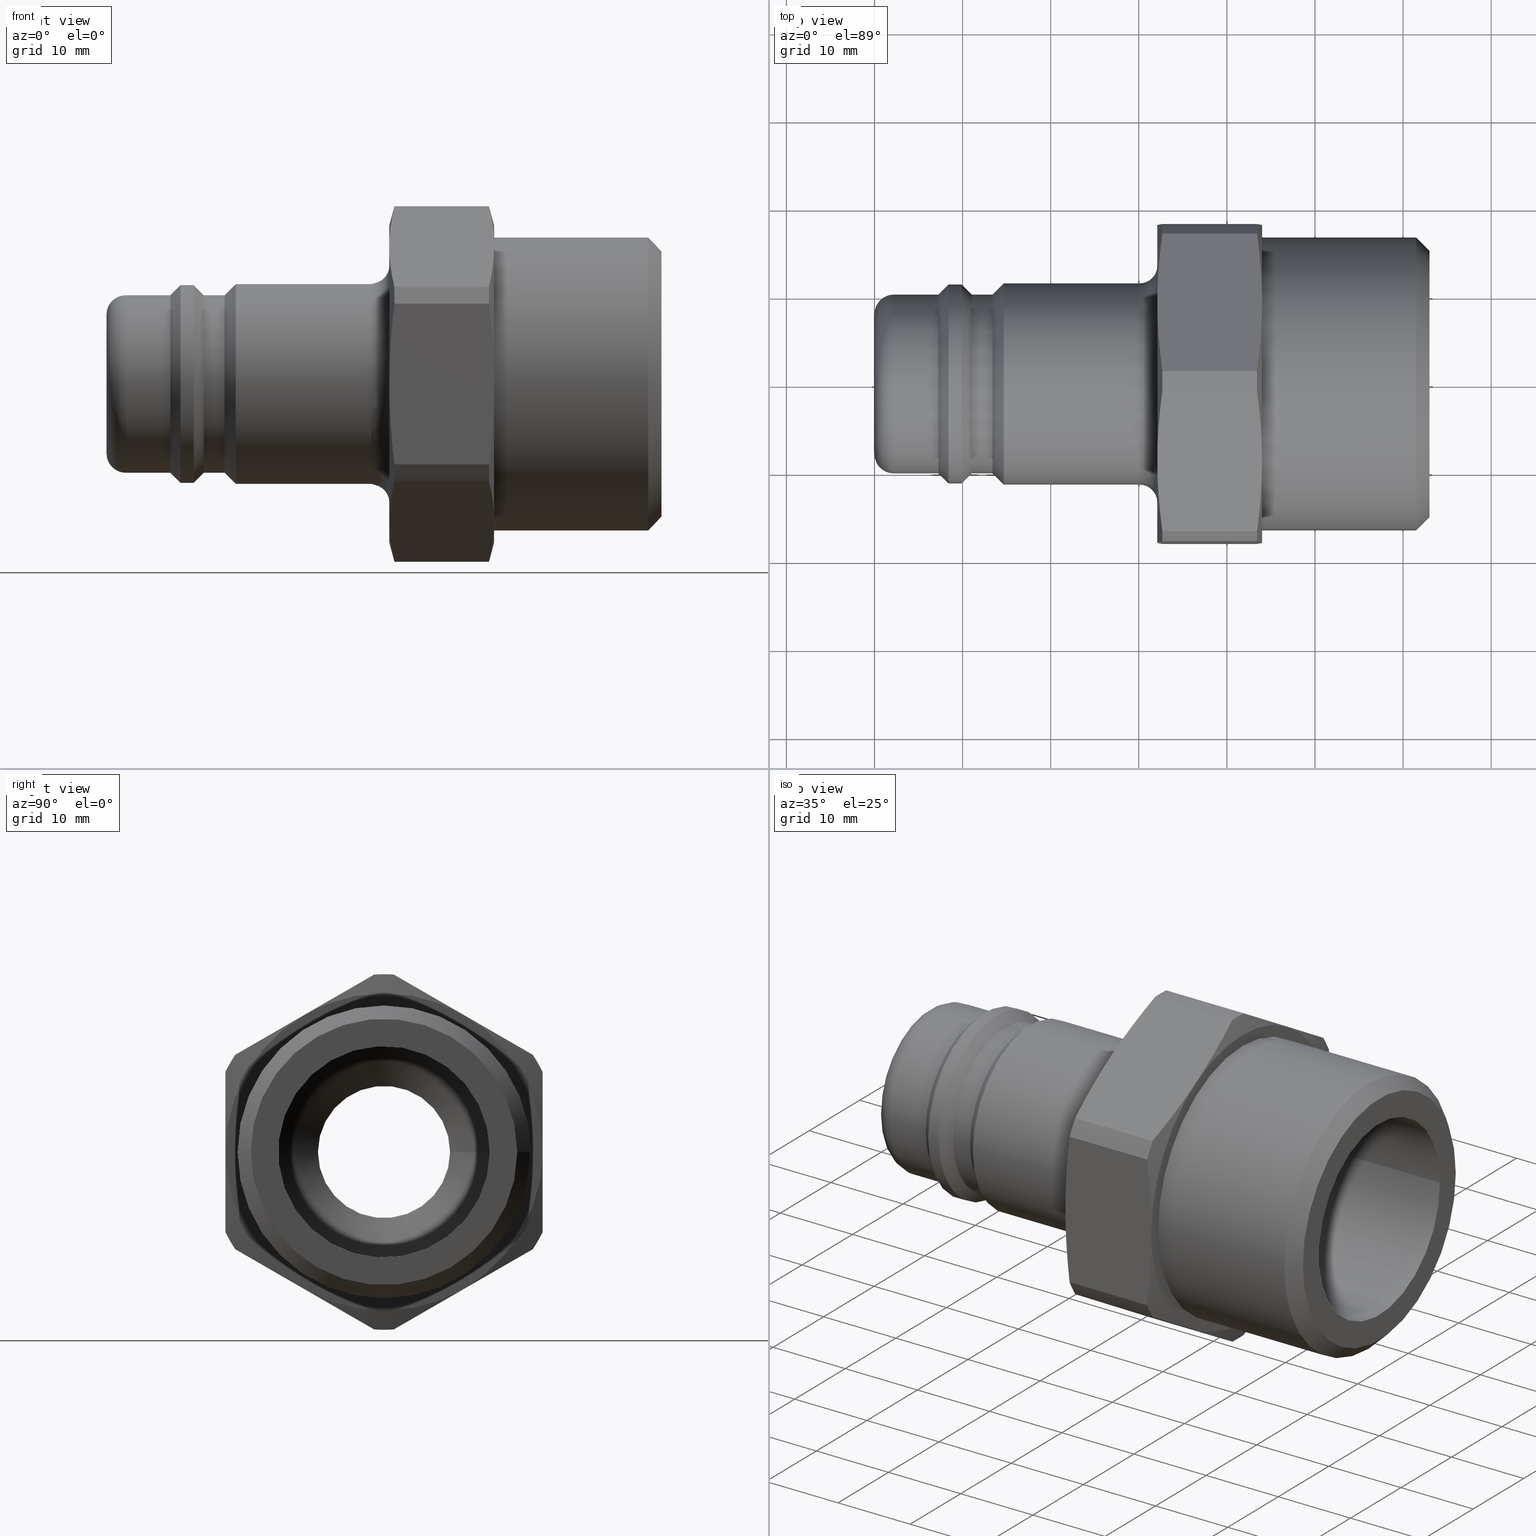
[diagram: canonical four-view strip — front | top / right | iso, engineering-drawing reading convention]
A machine part, canonical four-view strip (front | top / right | iso — engineering-drawing reading convention). The complete STEP part file that produces these views, byte-faithful:
ISO-10303-21;
HEADER;
/****************************************************************
 * Generated by software with PDElib inside                    *
 * PDElib Version v51a, created Wed 11/30/2011                  *
 * ITI Transcendata (http://www.transcendata.com/)              *
 ****************************************************************/
FILE_DESCRIPTION((''),'2;1');
FILE_NAME('J:\\3D Zeichnungen_step\\Serie 38\\38sfaw33mxn.stp','2014-08-04T08:39:11',('IA176480'),(''),'Autodesk Inventor 2013','Autodesk Inventor 2013','');
FILE_SCHEMA(('AUTOMOTIVE_DESIGN { 1 0 10303 214 1 1 1 1 }'));
ENDSEC;
DATA;
#5=APPLICATION_CONTEXT('automotive design');
#6=APPLICATION_PROTOCOL_DEFINITION('International Standard','automotive_design',2001,#5);
#7=PRODUCT_CONTEXT('',#5,'mechanical');
#8=PRODUCT('D111275','D111275',$,(#7));
#9=PRODUCT_RELATED_PRODUCT_CATEGORY('part',$,(#8));
#10=PRODUCT_DEFINITION_FORMATION('',$,#8);
#11=PRODUCT_DEFINITION_CONTEXT('part definition',#5,'design');
#12=PRODUCT_DEFINITION('',$,#10,#11);
#18=(NAMED_UNIT(*)PLANE_ANGLE_UNIT()SI_UNIT($,.RADIAN.));
#19=DIMENSIONAL_EXPONENTS(0.0,0.0,0.0,0.0,0.0,0.0,0.0);
#20=PLANE_ANGLE_MEASURE_WITH_UNIT(PLANE_ANGLE_MEASURE(0.0174532925),#18);
#24=(CONVERSION_BASED_UNIT('DEGREE',#20)NAMED_UNIT(#19)PLANE_ANGLE_UNIT());
#28=(NAMED_UNIT(*)SI_UNIT($,.STERADIAN.)SOLID_ANGLE_UNIT());
#32=(LENGTH_UNIT()NAMED_UNIT(*)SI_UNIT(.MILLI.,.METRE.));
#34=UNCERTAINTY_MEASURE_WITH_UNIT(LENGTH_MEASURE(0.01),#32,'DISTANCE_ACCURACY_VALUE','');
#36=(GEOMETRIC_REPRESENTATION_CONTEXT(3)GLOBAL_UNCERTAINTY_ASSIGNED_CONTEXT((#34))GLOBAL_UNIT_ASSIGNED_CONTEXT((#24,#28,#32))REPRESENTATION_CONTEXT('None','None'));
#37=AXIS2_PLACEMENT_3D('',#38,#39,#40);
#38=CARTESIAN_POINT('',(0.0,0.0,0.0));
#39=DIRECTION('',(0.0,0.0,1.0));
#40=DIRECTION('',(1.0,0.0,0.0));
#41=SHAPE_REPRESENTATION('',(#37),#36);
#42=PRODUCT_DEFINITION_SHAPE('','',#12);
#43=SHAPE_DEFINITION_REPRESENTATION(#42,#41);
#49=(NAMED_UNIT(*)PLANE_ANGLE_UNIT()SI_UNIT($,.RADIAN.));
#50=DIMENSIONAL_EXPONENTS(0.0,0.0,0.0,0.0,0.0,0.0,0.0);
#51=PLANE_ANGLE_MEASURE_WITH_UNIT(PLANE_ANGLE_MEASURE(0.0174532925),#49);
#55=(CONVERSION_BASED_UNIT('DEGREE',#51)NAMED_UNIT(#50)PLANE_ANGLE_UNIT());
#59=(NAMED_UNIT(*)SI_UNIT($,.STERADIAN.)SOLID_ANGLE_UNIT());
#63=(LENGTH_UNIT()NAMED_UNIT(*)SI_UNIT(.MILLI.,.METRE.));
#65=UNCERTAINTY_MEASURE_WITH_UNIT(LENGTH_MEASURE(0.000001),#63,'DISTANCE_ACCURACY_VALUE','');
#67=(GEOMETRIC_REPRESENTATION_CONTEXT(3)GLOBAL_UNCERTAINTY_ASSIGNED_CONTEXT((#65))GLOBAL_UNIT_ASSIGNED_CONTEXT((#55,#59,#63))REPRESENTATION_CONTEXT('','3D'));
#68=CARTESIAN_POINT('',(31.403086659045094,8.999999999999988,-15.588457268119903));
#69=DIRECTION('',(0.0,-0.499999999999999,0.866025403784439));
#70=DIRECTION('',(1.0,0.0,0.0));
#71=AXIS2_PLACEMENT_3D('',#68,#69,#70);
#72=PLANE('',#71);
#73=CARTESIAN_POINT('',(32.682789493537697,16.891322370173452,-11.032400173438145));
#74=VERTEX_POINT('',#73);
#75=CARTESIAN_POINT('',(32.100000000000009,8.999999999999986,-15.588457268119901));
#76=VERTEX_POINT('',#75);
#77=CARTESIAN_POINT('',(32.682789493537697,16.89132237017343,-11.032400173438162));
#78=CARTESIAN_POINT('',(32.100000000000009,12.72085927080866,-13.440218166501808));
#79=CARTESIAN_POINT('',(32.100000000000001,8.999999999999986,-15.588457268119903));
#87=(BOUNDED_CURVE()B_SPLINE_CURVE(2,(#77,#78,#79),.UNSPECIFIED.,.F.,.U.)B_SPLINE_CURVE_WITH_KNOTS((3,3),(0.0,0.91349749588939),.UNSPECIFIED.)CURVE()GEOMETRIC_REPRESENTATION_ITEM()RATIONAL_B_SPLINE_CURVE((1.0,1.029765345438803,1.0))REPRESENTATION_ITEM(''));
#88=EDGE_CURVE('',#74,#76,#87,.T.);
#89=ORIENTED_EDGE('',*,*,#88,.F.);
#90=CARTESIAN_POINT('',(43.417210506462297,16.891322370173452,-11.032400173438145));
#91=VERTEX_POINT('',#90);
#92=CARTESIAN_POINT('',(43.417210506462297,16.891322370173452,-11.032400173438145));
#93=DIRECTION('',(-1.0,0.0,0.0));
#94=VECTOR('',#93,10.734421012924599);
#95=LINE('',#92,#94);
#96=EDGE_CURVE('',#91,#74,#95,.T.);
#97=ORIENTED_EDGE('',*,*,#96,.F.);
#98=CARTESIAN_POINT('',(43.999999999999993,8.999999999999986,-15.588457268119901));
#99=VERTEX_POINT('',#98);
#100=CARTESIAN_POINT('',(44.0,8.999999999999988,-15.588457268119903));
#101=CARTESIAN_POINT('',(44.0,12.720859270808642,-13.440218166501817));
#102=CARTESIAN_POINT('',(43.417210506462297,16.891322370173473,-11.032400173438138));
#110=(BOUNDED_CURVE()B_SPLINE_CURVE(2,(#100,#101,#102),.UNSPECIFIED.,.F.,.U.)B_SPLINE_CURVE_WITH_KNOTS((3,3),(0.913497495889395,1.826994991778789),.UNSPECIFIED.)CURVE()GEOMETRIC_REPRESENTATION_ITEM()RATIONAL_B_SPLINE_CURVE((1.0,1.029765345438765,1.0))REPRESENTATION_ITEM(''));
#111=EDGE_CURVE('',#99,#91,#110,.T.);
#112=ORIENTED_EDGE('',*,*,#111,.F.);
#113=CARTESIAN_POINT('',(43.417210506462297,1.10867762982652,-20.144514362801658));
#114=VERTEX_POINT('',#113);
#115=CARTESIAN_POINT('',(43.417210506462297,1.108677629826502,-20.144514362801672));
#116=CARTESIAN_POINT('',(44.0,5.279140729191333,-17.736696369737992));
#117=CARTESIAN_POINT('',(44.0,8.999999999999988,-15.588457268119903));
#125=(BOUNDED_CURVE()B_SPLINE_CURVE(2,(#115,#116,#117),.UNSPECIFIED.,.F.,.U.)B_SPLINE_CURVE_WITH_KNOTS((3,3),(0.0,0.913497495889395),.UNSPECIFIED.)CURVE()GEOMETRIC_REPRESENTATION_ITEM()RATIONAL_B_SPLINE_CURVE((1.0,1.029765345438756,1.0))REPRESENTATION_ITEM(''));
#126=EDGE_CURVE('',#114,#99,#125,.T.);
#127=ORIENTED_EDGE('',*,*,#126,.F.);
#128=CARTESIAN_POINT('',(32.682789493537697,1.10867762982652,-20.144514362801658));
#129=VERTEX_POINT('',#128);
#130=CARTESIAN_POINT('',(32.682789493537697,1.10867762982652,-20.144514362801658));
#131=DIRECTION('',(1.0,0.0,0.0));
#132=VECTOR('',#131,10.734421012924599);
#133=LINE('',#130,#132);
#134=EDGE_CURVE('',#129,#114,#133,.T.);
#135=ORIENTED_EDGE('',*,*,#134,.F.);
#136=CARTESIAN_POINT('',(32.100000000000001,8.999999999999986,-15.588457268119903));
#137=CARTESIAN_POINT('',(32.100000000000009,5.279140729191313,-17.736696369738002));
#138=CARTESIAN_POINT('',(32.682789493537697,1.108677629826545,-20.144514362801647));
#146=(BOUNDED_CURVE()B_SPLINE_CURVE(2,(#136,#137,#138),.UNSPECIFIED.,.F.,.U.)B_SPLINE_CURVE_WITH_KNOTS((3,3),(0.91349749588939,1.826994991778779),.UNSPECIFIED.)CURVE()GEOMETRIC_REPRESENTATION_ITEM()RATIONAL_B_SPLINE_CURVE((1.0,1.029765345438831,1.0))REPRESENTATION_ITEM(''));
#147=EDGE_CURVE('',#76,#129,#146,.T.);
#148=ORIENTED_EDGE('',*,*,#147,.F.);
#149=EDGE_LOOP('',(#89,#97,#112,#127,#135,#148));
#150=FACE_OUTER_BOUND('',#149,.T.);
#151=ADVANCED_FACE('',(#150),#72,.F.);
#152=CARTESIAN_POINT('',(31.403086659045094,-9.000000000000007,-15.588457268119891));
#153=DIRECTION('',(0.0,0.5,0.866025403784438));
#154=DIRECTION('',(1.0,0.0,0.0));
#155=AXIS2_PLACEMENT_3D('',#152,#153,#154);
#156=PLANE('',#155);
#157=CARTESIAN_POINT('',(32.682789493537697,-1.108677629826553,-20.144514362801655));
#158=VERTEX_POINT('',#157);
#159=CARTESIAN_POINT('',(32.100000000000009,-9.000000000000007,-15.588457268119891));
#160=VERTEX_POINT('',#159);
#161=CARTESIAN_POINT('',(32.682789493537697,-1.10867762982657,-20.144514362801647));
#162=CARTESIAN_POINT('',(32.100000000000009,-5.279140729191308,-17.736696369738009));
#163=CARTESIAN_POINT('',(32.100000000000009,-9.000000000000007,-15.588457268119891));
#171=(BOUNDED_CURVE()B_SPLINE_CURVE(2,(#161,#162,#163),.UNSPECIFIED.,.F.,.U.)B_SPLINE_CURVE_WITH_KNOTS((3,3),(0.0,0.91349749588939),.UNSPECIFIED.)CURVE()GEOMETRIC_REPRESENTATION_ITEM()RATIONAL_B_SPLINE_CURVE((1.0,1.029765345438819,1.0))REPRESENTATION_ITEM(''));
#172=EDGE_CURVE('',#158,#160,#171,.T.);
#173=ORIENTED_EDGE('',*,*,#172,.F.);
#174=CARTESIAN_POINT('',(43.417210506462297,-1.108677629826553,-20.144514362801655));
#175=VERTEX_POINT('',#174);
#176=CARTESIAN_POINT('',(43.417210506462297,-1.108677629826553,-20.144514362801655));
#177=DIRECTION('',(-1.0,0.0,0.0));
#178=VECTOR('',#177,10.734421012924599);
#179=LINE('',#176,#178);
#180=EDGE_CURVE('',#175,#158,#179,.T.);
#181=ORIENTED_EDGE('',*,*,#180,.F.);
#182=CARTESIAN_POINT('',(43.999999999999993,-9.000000000000007,-15.588457268119891));
#183=VERTEX_POINT('',#182);
#184=CARTESIAN_POINT('',(43.999999999999993,-9.000000000000007,-15.588457268119891));
#185=CARTESIAN_POINT('',(43.999999999999993,-5.27914072919123,-17.736696369738056));
#186=CARTESIAN_POINT('',(43.417210506462297,-1.108677629826524,-20.144514362801672));
#194=(BOUNDED_CURVE()B_SPLINE_CURVE(2,(#184,#185,#186),.UNSPECIFIED.,.F.,.U.)B_SPLINE_CURVE_WITH_KNOTS((3,3),(0.913497495889394,1.826994991778789),.UNSPECIFIED.)CURVE()GEOMETRIC_REPRESENTATION_ITEM()RATIONAL_B_SPLINE_CURVE((1.0,1.029765345438794,1.0))REPRESENTATION_ITEM(''));
#195=EDGE_CURVE('',#183,#175,#194,.T.);
#196=ORIENTED_EDGE('',*,*,#195,.F.);
#197=CARTESIAN_POINT('',(43.417210506462297,-16.891322370173462,-11.032400173438127));
#198=VERTEX_POINT('',#197);
#199=CARTESIAN_POINT('',(43.417210506462297,-16.891322370173484,-11.032400173438113));
#200=CARTESIAN_POINT('',(43.999999999999993,-12.720859270808781,-13.44021816650173));
#201=CARTESIAN_POINT('',(43.999999999999993,-9.000000000000007,-15.588457268119891));
#209=(BOUNDED_CURVE()B_SPLINE_CURVE(2,(#199,#200,#201),.UNSPECIFIED.,.F.,.U.)B_SPLINE_CURVE_WITH_KNOTS((3,3),(0.0,0.913497495889394),.UNSPECIFIED.)CURVE()GEOMETRIC_REPRESENTATION_ITEM()RATIONAL_B_SPLINE_CURVE((1.0,1.029765345438783,1.0))REPRESENTATION_ITEM(''));
#210=EDGE_CURVE('',#198,#183,#209,.T.);
#211=ORIENTED_EDGE('',*,*,#210,.F.);
#212=CARTESIAN_POINT('',(32.682789493537697,-16.891322370173462,-11.032400173438127));
#213=VERTEX_POINT('',#212);
#214=CARTESIAN_POINT('',(32.682789493537697,-16.891322370173462,-11.032400173438127));
#215=DIRECTION('',(1.0,0.0,0.0));
#216=VECTOR('',#215,10.734421012924599);
#217=LINE('',#214,#216);
#218=EDGE_CURVE('',#213,#198,#217,.T.);
#219=ORIENTED_EDGE('',*,*,#218,.F.);
#220=CARTESIAN_POINT('',(32.100000000000009,-9.000000000000007,-15.588457268119891));
#221=CARTESIAN_POINT('',(32.100000000000009,-12.720859270808702,-13.440218166501774));
#222=CARTESIAN_POINT('',(32.682789493537697,-16.891322370173441,-11.032400173438138));
#230=(BOUNDED_CURVE()B_SPLINE_CURVE(2,(#220,#221,#222),.UNSPECIFIED.,.F.,.U.)B_SPLINE_CURVE_WITH_KNOTS((3,3),(0.91349749588939,1.826994991778779),.UNSPECIFIED.)CURVE()GEOMETRIC_REPRESENTATION_ITEM()RATIONAL_B_SPLINE_CURVE((1.0,1.029765345438808,1.0))REPRESENTATION_ITEM(''));
#231=EDGE_CURVE('',#160,#213,#230,.T.);
#232=ORIENTED_EDGE('',*,*,#231,.F.);
#233=EDGE_LOOP('',(#173,#181,#196,#211,#219,#232));
#234=FACE_OUTER_BOUND('',#233,.T.);
#235=ADVANCED_FACE('',(#234),#156,.F.);
#236=CARTESIAN_POINT('',(31.403086659045094,-18.000000000000004,3.330669E-015));
#237=DIRECTION('',(0.0,1.0,0.0));
#238=DIRECTION('',(1.0,0.0,0.0));
#239=AXIS2_PLACEMENT_3D('',#236,#237,#238);
#240=PLANE('',#239);
#241=CARTESIAN_POINT('',(32.682789493537697,-18.000000000000004,-9.112114189363515));
#242=VERTEX_POINT('',#241);
#243=CARTESIAN_POINT('',(32.100000000000009,-18.000000000000004,2.997602E-015));
#244=VERTEX_POINT('',#243);
#245=CARTESIAN_POINT('',(32.682789493537697,-18.000000000000004,-9.112114189363492));
#246=CARTESIAN_POINT('',(32.100000000000016,-18.000000000000004,-4.296478203236299));
#247=CARTESIAN_POINT('',(32.100000000000009,-18.000000000000004,2.997602E-015));
#255=(BOUNDED_CURVE()B_SPLINE_CURVE(2,(#245,#246,#247),.UNSPECIFIED.,.F.,.U.)B_SPLINE_CURVE_WITH_KNOTS((3,3),(0.0,0.913497495889389),.UNSPECIFIED.)CURVE()GEOMETRIC_REPRESENTATION_ITEM()RATIONAL_B_SPLINE_CURVE((1.0,1.02976534543879,1.0))REPRESENTATION_ITEM(''));
#256=EDGE_CURVE('',#242,#244,#255,.T.);
#257=ORIENTED_EDGE('',*,*,#256,.F.);
#258=CARTESIAN_POINT('',(43.417210506462297,-18.000000000000004,-9.112114189363515));
#259=VERTEX_POINT('',#258);
#260=CARTESIAN_POINT('',(43.417210506462297,-18.000000000000004,-9.112114189363515));
#261=DIRECTION('',(-1.0,0.0,0.0));
#262=VECTOR('',#261,10.734421012924599);
#263=LINE('',#260,#262);
#264=EDGE_CURVE('',#259,#242,#263,.T.);
#265=ORIENTED_EDGE('',*,*,#264,.F.);
#266=CARTESIAN_POINT('',(43.999999999999993,-18.000000000000004,2.997602E-015));
#267=VERTEX_POINT('',#266);
#268=CARTESIAN_POINT('',(43.999999999999993,-18.000000000000004,2.997602E-015));
#269=CARTESIAN_POINT('',(44.0,-18.000000000000004,-4.296478203236294));
#270=CARTESIAN_POINT('',(43.417210506462297,-18.000000000000004,-9.112114189363545));
#278=(BOUNDED_CURVE()B_SPLINE_CURVE(2,(#268,#269,#270),.UNSPECIFIED.,.F.,.U.)B_SPLINE_CURVE_WITH_KNOTS((3,3),(0.913497495889395,1.826994991778789),.UNSPECIFIED.)CURVE()GEOMETRIC_REPRESENTATION_ITEM()RATIONAL_B_SPLINE_CURVE((1.0,1.029765345438739,1.0))REPRESENTATION_ITEM(''));
#279=EDGE_CURVE('',#267,#259,#278,.T.);
#280=ORIENTED_EDGE('',*,*,#279,.F.);
#281=CARTESIAN_POINT('',(43.417210506462297,-18.0,9.112114189363522));
#282=VERTEX_POINT('',#281);
#283=CARTESIAN_POINT('',(43.417210506462297,-18.0,9.112114189363554));
#284=CARTESIAN_POINT('',(44.0,-18.000000000000004,4.296478203236301));
#285=CARTESIAN_POINT('',(43.999999999999993,-18.000000000000004,2.997602E-015));
#293=(BOUNDED_CURVE()B_SPLINE_CURVE(2,(#283,#284,#285),.UNSPECIFIED.,.F.,.U.)B_SPLINE_CURVE_WITH_KNOTS((3,3),(0.0,0.913497495889395),.UNSPECIFIED.)CURVE()GEOMETRIC_REPRESENTATION_ITEM()RATIONAL_B_SPLINE_CURVE((1.0,1.029765345438729,1.0))REPRESENTATION_ITEM(''));
#294=EDGE_CURVE('',#282,#267,#293,.T.);
#295=ORIENTED_EDGE('',*,*,#294,.F.);
#296=CARTESIAN_POINT('',(32.682789493537697,-18.0,9.112114189363522));
#297=VERTEX_POINT('',#296);
#298=CARTESIAN_POINT('',(32.682789493537697,-18.0,9.112114189363522));
#299=DIRECTION('',(1.0,0.0,0.0));
#300=VECTOR('',#299,10.734421012924599);
#301=LINE('',#298,#300);
#302=EDGE_CURVE('',#297,#282,#301,.T.);
#303=ORIENTED_EDGE('',*,*,#302,.F.);
#304=CARTESIAN_POINT('',(32.100000000000009,-18.000000000000004,2.997602E-015));
#305=CARTESIAN_POINT('',(32.100000000000016,-18.000000000000004,4.296478203236307));
#306=CARTESIAN_POINT('',(32.682789493537697,-18.0,9.112114189363499));
#314=(BOUNDED_CURVE()B_SPLINE_CURVE(2,(#304,#305,#306),.UNSPECIFIED.,.F.,.U.)B_SPLINE_CURVE_WITH_KNOTS((3,3),(0.913497495889389,1.826994991778778),.UNSPECIFIED.)CURVE()GEOMETRIC_REPRESENTATION_ITEM()RATIONAL_B_SPLINE_CURVE((1.0,1.029765345438782,1.0))REPRESENTATION_ITEM(''));
#315=EDGE_CURVE('',#244,#297,#314,.T.);
#316=ORIENTED_EDGE('',*,*,#315,.F.);
#317=EDGE_LOOP('',(#257,#265,#280,#295,#303,#316));
#318=FACE_OUTER_BOUND('',#317,.T.);
#319=ADVANCED_FACE('',(#318),#240,.F.);
#320=CARTESIAN_POINT('',(31.403086659045094,-8.999999999999996,15.5884572681199));
#321=DIRECTION('',(0.0,0.5,-0.866025403784439));
#322=DIRECTION('',(1.0,0.0,0.0));
#323=AXIS2_PLACEMENT_3D('',#320,#321,#322);
#324=PLANE('',#323);
#325=CARTESIAN_POINT('',(32.682789493537697,-16.891322370173455,11.032400173438139));
#326=VERTEX_POINT('',#325);
#327=CARTESIAN_POINT('',(32.100000000000009,-8.999999999999996,15.5884572681199));
#328=VERTEX_POINT('',#327);
#329=CARTESIAN_POINT('',(32.682789493537697,-16.891322370173437,11.032400173438152));
#330=CARTESIAN_POINT('',(32.100000000000016,-12.720859270808768,13.440218166501744));
#331=CARTESIAN_POINT('',(32.100000000000009,-8.999999999999996,15.5884572681199));
#339=(BOUNDED_CURVE()B_SPLINE_CURVE(2,(#329,#330,#331),.UNSPECIFIED.,.F.,.U.)B_SPLINE_CURVE_WITH_KNOTS((3,3),(0.0,0.91349749588939),.UNSPECIFIED.)CURVE()GEOMETRIC_REPRESENTATION_ITEM()RATIONAL_B_SPLINE_CURVE((1.0,1.029765345438777,1.0))REPRESENTATION_ITEM(''));
#340=EDGE_CURVE('',#326,#328,#339,.T.);
#341=ORIENTED_EDGE('',*,*,#340,.F.);
#342=CARTESIAN_POINT('',(43.417210506462297,-16.891322370173455,11.032400173438139));
#343=VERTEX_POINT('',#342);
#344=CARTESIAN_POINT('',(43.417210506462297,-16.891322370173455,11.032400173438139));
#345=DIRECTION('',(-1.0,0.0,0.0));
#346=VECTOR('',#345,10.734421012924599);
#347=LINE('',#344,#346);
#348=EDGE_CURVE('',#343,#326,#347,.T.);
#349=ORIENTED_EDGE('',*,*,#348,.F.);
#350=CARTESIAN_POINT('',(43.999999999999993,-8.999999999999996,15.5884572681199));
#351=VERTEX_POINT('',#350);
#352=CARTESIAN_POINT('',(43.999999999999993,-8.999999999999996,15.5884572681199));
#353=CARTESIAN_POINT('',(44.0,-12.720859270808711,13.440218166501776));
#354=CARTESIAN_POINT('',(43.417210506462297,-16.891322370173476,11.032400173438129));
#362=(BOUNDED_CURVE()B_SPLINE_CURVE(2,(#352,#353,#354),.UNSPECIFIED.,.F.,.U.)B_SPLINE_CURVE_WITH_KNOTS((3,3),(0.913497495889395,1.826994991778789),.UNSPECIFIED.)CURVE()GEOMETRIC_REPRESENTATION_ITEM()RATIONAL_B_SPLINE_CURVE((1.0,1.029765345438747,1.0))REPRESENTATION_ITEM(''));
#363=EDGE_CURVE('',#351,#343,#362,.T.);
#364=ORIENTED_EDGE('',*,*,#363,.F.);
#365=CARTESIAN_POINT('',(43.417210506462297,-1.108677629826538,20.144514362801658));
#366=VERTEX_POINT('',#365);
#367=CARTESIAN_POINT('',(43.417210506462297,-1.108677629826513,20.144514362801672));
#368=CARTESIAN_POINT('',(44.0,-5.27914072919128,17.736696369738027));
#369=CARTESIAN_POINT('',(43.999999999999993,-8.999999999999996,15.5884572681199));
#377=(BOUNDED_CURVE()B_SPLINE_CURVE(2,(#367,#368,#369),.UNSPECIFIED.,.F.,.U.)B_SPLINE_CURVE_WITH_KNOTS((3,3),(0.0,0.913497495889395),.UNSPECIFIED.)CURVE()GEOMETRIC_REPRESENTATION_ITEM()RATIONAL_B_SPLINE_CURVE((1.0,1.029765345438745,1.0))REPRESENTATION_ITEM(''));
#378=EDGE_CURVE('',#366,#351,#377,.T.);
#379=ORIENTED_EDGE('',*,*,#378,.F.);
#380=CARTESIAN_POINT('',(32.682789493537697,-1.108677629826538,20.144514362801658));
#381=VERTEX_POINT('',#380);
#382=CARTESIAN_POINT('',(32.682789493537697,-1.108677629826538,20.144514362801658));
#383=DIRECTION('',(1.0,0.0,0.0));
#384=VECTOR('',#383,10.734421012924599);
#385=LINE('',#382,#384);
#386=EDGE_CURVE('',#381,#366,#385,.T.);
#387=ORIENTED_EDGE('',*,*,#386,.F.);
#388=CARTESIAN_POINT('',(32.100000000000009,-8.999999999999996,15.5884572681199));
#389=CARTESIAN_POINT('',(32.100000000000016,-5.279140729191224,17.736696369738056));
#390=CARTESIAN_POINT('',(32.682789493537697,-1.108677629826556,20.144514362801647));
#398=(BOUNDED_CURVE()B_SPLINE_CURVE(2,(#388,#389,#390),.UNSPECIFIED.,.F.,.U.)B_SPLINE_CURVE_WITH_KNOTS((3,3),(0.91349749588939,1.826994991778779),.UNSPECIFIED.)CURVE()GEOMETRIC_REPRESENTATION_ITEM()RATIONAL_B_SPLINE_CURVE((1.0,1.029765345438785,1.0))REPRESENTATION_ITEM(''));
#399=EDGE_CURVE('',#328,#381,#398,.T.);
#400=ORIENTED_EDGE('',*,*,#399,.F.);
#401=EDGE_LOOP('',(#341,#349,#364,#379,#387,#400));
#402=FACE_OUTER_BOUND('',#401,.T.);
#403=ADVANCED_FACE('',(#402),#324,.F.);
#404=CARTESIAN_POINT('',(31.403086659045094,9.000000000000002,15.588457268119896));
#405=DIRECTION('',(0.0,-0.5,-0.866025403784439));
#406=DIRECTION('',(1.0,0.0,0.0));
#407=AXIS2_PLACEMENT_3D('',#404,#405,#406);
#408=PLANE('',#407);
#409=CARTESIAN_POINT('',(32.682789493537697,1.108677629826546,20.144514362801658));
#410=VERTEX_POINT('',#409);
#411=CARTESIAN_POINT('',(32.100000000000009,9.000000000000002,15.588457268119896));
#412=VERTEX_POINT('',#411);
#413=CARTESIAN_POINT('',(32.682789493537697,1.108677629826565,20.144514362801647));
#414=CARTESIAN_POINT('',(32.100000000000009,5.279140729191304,17.736696369738013));
#415=CARTESIAN_POINT('',(32.100000000000009,9.000000000000002,15.588457268119896));
#423=(BOUNDED_CURVE()B_SPLINE_CURVE(2,(#413,#414,#415),.UNSPECIFIED.,.F.,.U.)B_SPLINE_CURVE_WITH_KNOTS((3,3),(0.0,0.91349749588939),.UNSPECIFIED.)CURVE()GEOMETRIC_REPRESENTATION_ITEM()RATIONAL_B_SPLINE_CURVE((1.0,1.029765345438819,1.0))REPRESENTATION_ITEM(''));
#424=EDGE_CURVE('',#410,#412,#423,.T.);
#425=ORIENTED_EDGE('',*,*,#424,.F.);
#426=CARTESIAN_POINT('',(43.417210506462297,1.108677629826546,20.144514362801658));
#427=VERTEX_POINT('',#426);
#428=CARTESIAN_POINT('',(43.417210506462297,1.108677629826546,20.144514362801658));
#429=DIRECTION('',(-1.0,0.0,0.0));
#430=VECTOR('',#429,10.734421012924599);
#431=LINE('',#428,#430);
#432=EDGE_CURVE('',#427,#410,#431,.T.);
#433=ORIENTED_EDGE('',*,*,#432,.F.);
#434=CARTESIAN_POINT('',(43.999999999999993,9.000000000000002,15.588457268119896));
#435=VERTEX_POINT('',#434);
#436=CARTESIAN_POINT('',(43.999999999999993,9.000000000000002,15.588457268119896));
#437=CARTESIAN_POINT('',(44.0,5.279140729191284,17.736696369738024));
#438=CARTESIAN_POINT('',(43.417210506462297,1.108677629826516,20.144514362801672));
#446=(BOUNDED_CURVE()B_SPLINE_CURVE(2,(#436,#437,#438),.UNSPECIFIED.,.F.,.U.)B_SPLINE_CURVE_WITH_KNOTS((3,3),(0.913497495889395,1.82699499177879),.UNSPECIFIED.)CURVE()GEOMETRIC_REPRESENTATION_ITEM()RATIONAL_B_SPLINE_CURVE((1.0,1.029765345438759,1.0))REPRESENTATION_ITEM(''));
#447=EDGE_CURVE('',#435,#427,#446,.T.);
#448=ORIENTED_EDGE('',*,*,#447,.F.);
#449=CARTESIAN_POINT('',(43.417210506462297,16.891322370173462,11.032400173438132));
#450=VERTEX_POINT('',#449);
#451=CARTESIAN_POINT('',(43.417210506462297,16.891322370173484,11.03240017343812));
#452=CARTESIAN_POINT('',(44.0,12.720859270808717,13.440218166501767));
#453=CARTESIAN_POINT('',(43.999999999999993,9.000000000000002,15.588457268119896));
#461=(BOUNDED_CURVE()B_SPLINE_CURVE(2,(#451,#452,#453),.UNSPECIFIED.,.F.,.U.)B_SPLINE_CURVE_WITH_KNOTS((3,3),(0.0,0.913497495889395),.UNSPECIFIED.)CURVE()GEOMETRIC_REPRESENTATION_ITEM()RATIONAL_B_SPLINE_CURVE((1.0,1.029765345438755,1.0))REPRESENTATION_ITEM(''));
#462=EDGE_CURVE('',#450,#435,#461,.T.);
#463=ORIENTED_EDGE('',*,*,#462,.F.);
#464=CARTESIAN_POINT('',(32.682789493537697,16.891322370173462,11.032400173438132));
#465=VERTEX_POINT('',#464);
#466=CARTESIAN_POINT('',(32.682789493537697,16.891322370173462,11.032400173438132));
#467=DIRECTION('',(1.0,0.0,0.0));
#468=VECTOR('',#467,10.734421012924599);
#469=LINE('',#466,#468);
#470=EDGE_CURVE('',#465,#450,#469,.T.);
#471=ORIENTED_EDGE('',*,*,#470,.F.);
#472=CARTESIAN_POINT('',(32.100000000000009,9.000000000000002,15.588457268119896));
#473=CARTESIAN_POINT('',(32.100000000000009,12.720859270808697,13.440218166501779));
#474=CARTESIAN_POINT('',(32.682789493537697,16.891322370173434,11.032400173438146));
#482=(BOUNDED_CURVE()B_SPLINE_CURVE(2,(#472,#473,#474),.UNSPECIFIED.,.F.,.U.)B_SPLINE_CURVE_WITH_KNOTS((3,3),(0.91349749588939,1.826994991778778),.UNSPECIFIED.)CURVE()GEOMETRIC_REPRESENTATION_ITEM()RATIONAL_B_SPLINE_CURVE((1.0,1.0297653454388,1.0))REPRESENTATION_ITEM(''));
#483=EDGE_CURVE('',#412,#465,#482,.T.);
#484=ORIENTED_EDGE('',*,*,#483,.F.);
#485=EDGE_LOOP('',(#425,#433,#448,#463,#471,#484));
#486=FACE_OUTER_BOUND('',#485,.T.);
#487=ADVANCED_FACE('',(#486),#408,.F.);
#488=CARTESIAN_POINT('',(43.708605253231156,0.0,0.0));
#489=DIRECTION('',(-1.0,0.0,0.0));
#490=DIRECTION('',(0.0,1.0,0.0));
#491=AXIS2_PLACEMENT_3D('',#488,#489,#490);
#492=CONICAL_SURFACE('',#491,19.087499999999999,74.999999999999957);
#493=ORIENTED_EDGE('',*,*,#462,.T.);
#494=CARTESIAN_POINT('',(43.999999999999993,18.0,0.0));
#495=VERTEX_POINT('',#494);
#496=CARTESIAN_POINT('',(43.999999999999993,0.0,0.0));
#497=DIRECTION('',(1.0,0.0,0.0));
#498=DIRECTION('',(0.0,1.0,0.0));
#499=AXIS2_PLACEMENT_3D('',#496,#497,#498);
#500=CIRCLE('',#499,18.0);
#501=EDGE_CURVE('',#495,#435,#500,.T.);
#502=ORIENTED_EDGE('',*,*,#501,.F.);
#503=CARTESIAN_POINT('',(43.417210506462297,18.0,9.112114189363522));
#504=VERTEX_POINT('',#503);
#505=CARTESIAN_POINT('',(43.999999999999993,18.0,0.0));
#506=CARTESIAN_POINT('',(44.0,18.0,4.296478203236303));
#507=CARTESIAN_POINT('',(43.417210506462297,18.0,9.11211418936356));
#515=(BOUNDED_CURVE()B_SPLINE_CURVE(2,(#505,#506,#507),.UNSPECIFIED.,.F.,.U.)B_SPLINE_CURVE_WITH_KNOTS((3,3),(0.913497495889396,1.826994991778791),.UNSPECIFIED.)CURVE()GEOMETRIC_REPRESENTATION_ITEM()RATIONAL_B_SPLINE_CURVE((1.0,1.029765345438735,1.0))REPRESENTATION_ITEM(''));
#516=EDGE_CURVE('',#495,#504,#515,.T.);
#517=ORIENTED_EDGE('',*,*,#516,.T.);
#518=CARTESIAN_POINT('',(43.417210506462297,0.0,0.0));
#519=DIRECTION('',(1.0,0.0,0.0));
#520=DIRECTION('',(0.0,1.0,0.0));
#521=AXIS2_PLACEMENT_3D('',#518,#519,#520);
#522=CIRCLE('',#521,20.175000000000001);
#523=EDGE_CURVE('',#504,#450,#522,.T.);
#524=ORIENTED_EDGE('',*,*,#523,.T.);
#525=EDGE_LOOP('',(#493,#502,#517,#524));
#526=FACE_OUTER_BOUND('',#525,.T.);
#527=ADVANCED_FACE('',(#526),#492,.T.);
#528=CARTESIAN_POINT('',(43.708605253231156,0.0,0.0));
#529=DIRECTION('',(-1.0,0.0,0.0));
#530=DIRECTION('',(0.0,1.0,0.0));
#531=AXIS2_PLACEMENT_3D('',#528,#529,#530);
#532=CONICAL_SURFACE('',#531,19.087499999999999,74.999999999999957);
#533=ORIENTED_EDGE('',*,*,#378,.T.);
#534=CARTESIAN_POINT('',(43.999999999999993,0.0,0.0));
#535=DIRECTION('',(1.0,0.0,0.0));
#536=DIRECTION('',(0.0,1.0,0.0));
#537=AXIS2_PLACEMENT_3D('',#534,#535,#536);
#538=CIRCLE('',#537,18.0);
#539=EDGE_CURVE('',#435,#351,#538,.T.);
#540=ORIENTED_EDGE('',*,*,#539,.F.);
#541=ORIENTED_EDGE('',*,*,#447,.T.);
#542=CARTESIAN_POINT('',(43.417210506462297,0.0,0.0));
#543=DIRECTION('',(1.0,0.0,0.0));
#544=DIRECTION('',(0.0,1.0,0.0));
#545=AXIS2_PLACEMENT_3D('',#542,#543,#544);
#546=CIRCLE('',#545,20.175000000000001);
#547=EDGE_CURVE('',#427,#366,#546,.T.);
#548=ORIENTED_EDGE('',*,*,#547,.T.);
#549=EDGE_LOOP('',(#533,#540,#541,#548));
#550=FACE_OUTER_BOUND('',#549,.T.);
#551=ADVANCED_FACE('',(#550),#532,.T.);
#552=CARTESIAN_POINT('',(43.708605253231156,0.0,0.0));
#553=DIRECTION('',(-1.0,0.0,0.0));
#554=DIRECTION('',(0.0,1.0,0.0));
#555=AXIS2_PLACEMENT_3D('',#552,#553,#554);
#556=CONICAL_SURFACE('',#555,19.087499999999999,74.999999999999957);
#557=ORIENTED_EDGE('',*,*,#294,.T.);
#558=CARTESIAN_POINT('',(43.999999999999993,0.0,0.0));
#559=DIRECTION('',(1.0,0.0,0.0));
#560=DIRECTION('',(0.0,1.0,0.0));
#561=AXIS2_PLACEMENT_3D('',#558,#559,#560);
#562=CIRCLE('',#561,18.0);
#563=EDGE_CURVE('',#351,#267,#562,.T.);
#564=ORIENTED_EDGE('',*,*,#563,.F.);
#565=ORIENTED_EDGE('',*,*,#363,.T.);
#566=CARTESIAN_POINT('',(43.417210506462297,0.0,0.0));
#567=DIRECTION('',(1.0,0.0,0.0));
#568=DIRECTION('',(0.0,1.0,0.0));
#569=AXIS2_PLACEMENT_3D('',#566,#567,#568);
#570=CIRCLE('',#569,20.175000000000001);
#571=EDGE_CURVE('',#343,#282,#570,.T.);
#572=ORIENTED_EDGE('',*,*,#571,.T.);
#573=EDGE_LOOP('',(#557,#564,#565,#572));
#574=FACE_OUTER_BOUND('',#573,.T.);
#575=ADVANCED_FACE('',(#574),#556,.T.);
#576=CARTESIAN_POINT('',(43.708605253231156,0.0,0.0));
#577=DIRECTION('',(-1.0,0.0,0.0));
#578=DIRECTION('',(0.0,1.0,0.0));
#579=AXIS2_PLACEMENT_3D('',#576,#577,#578);
#580=CONICAL_SURFACE('',#579,19.087499999999999,74.999999999999957);
#581=ORIENTED_EDGE('',*,*,#210,.T.);
#582=CARTESIAN_POINT('',(43.999999999999993,0.0,0.0));
#583=DIRECTION('',(1.0,0.0,0.0));
#584=DIRECTION('',(0.0,1.0,0.0));
#585=AXIS2_PLACEMENT_3D('',#582,#583,#584);
#586=CIRCLE('',#585,18.0);
#587=EDGE_CURVE('',#267,#183,#586,.T.);
#588=ORIENTED_EDGE('',*,*,#587,.F.);
#589=ORIENTED_EDGE('',*,*,#279,.T.);
#590=CARTESIAN_POINT('',(43.417210506462297,0.0,0.0));
#591=DIRECTION('',(1.0,0.0,0.0));
#592=DIRECTION('',(0.0,1.0,0.0));
#593=AXIS2_PLACEMENT_3D('',#590,#591,#592);
#594=CIRCLE('',#593,20.175000000000001);
#595=EDGE_CURVE('',#259,#198,#594,.T.);
#596=ORIENTED_EDGE('',*,*,#595,.T.);
#597=EDGE_LOOP('',(#581,#588,#589,#596));
#598=FACE_OUTER_BOUND('',#597,.T.);
#599=ADVANCED_FACE('',(#598),#580,.T.);
#600=CARTESIAN_POINT('',(43.708605253231156,0.0,0.0));
#601=DIRECTION('',(-1.0,0.0,0.0));
#602=DIRECTION('',(0.0,1.0,0.0));
#603=AXIS2_PLACEMENT_3D('',#600,#601,#602);
#604=CONICAL_SURFACE('',#603,19.087499999999999,74.999999999999957);
#605=ORIENTED_EDGE('',*,*,#111,.T.);
#606=CARTESIAN_POINT('',(43.417210506462297,18.0,-9.112114189363522));
#607=VERTEX_POINT('',#606);
#608=CARTESIAN_POINT('',(43.417210506462297,0.0,0.0));
#609=DIRECTION('',(1.0,0.0,0.0));
#610=DIRECTION('',(0.0,1.0,0.0));
#611=AXIS2_PLACEMENT_3D('',#608,#609,#610);
#612=CIRCLE('',#611,20.175000000000001);
#613=EDGE_CURVE('',#91,#607,#612,.T.);
#614=ORIENTED_EDGE('',*,*,#613,.T.);
#615=CARTESIAN_POINT('',(43.417210506462297,18.0,-9.11211418936356));
#616=CARTESIAN_POINT('',(44.0,18.0,-4.296478203236303));
#617=CARTESIAN_POINT('',(43.999999999999993,18.0,0.0));
#625=(BOUNDED_CURVE()B_SPLINE_CURVE(2,(#615,#616,#617),.UNSPECIFIED.,.F.,.U.)B_SPLINE_CURVE_WITH_KNOTS((3,3),(0.0,0.913497495889396),.UNSPECIFIED.)CURVE()GEOMETRIC_REPRESENTATION_ITEM()RATIONAL_B_SPLINE_CURVE((1.0,1.029765345438735,1.0))REPRESENTATION_ITEM(''));
#626=EDGE_CURVE('',#607,#495,#625,.T.);
#627=ORIENTED_EDGE('',*,*,#626,.T.);
#628=CARTESIAN_POINT('',(43.999999999999993,0.0,0.0));
#629=DIRECTION('',(1.0,0.0,0.0));
#630=DIRECTION('',(0.0,1.0,0.0));
#631=AXIS2_PLACEMENT_3D('',#628,#629,#630);
#632=CIRCLE('',#631,18.0);
#633=EDGE_CURVE('',#99,#495,#632,.T.);
#634=ORIENTED_EDGE('',*,*,#633,.F.);
#635=EDGE_LOOP('',(#605,#614,#627,#634));
#636=FACE_OUTER_BOUND('',#635,.T.);
#637=ADVANCED_FACE('',(#636),#604,.T.);
#638=CARTESIAN_POINT('',(43.708605253231156,0.0,0.0));
#639=DIRECTION('',(-1.0,0.0,0.0));
#640=DIRECTION('',(0.0,1.0,0.0));
#641=AXIS2_PLACEMENT_3D('',#638,#639,#640);
#642=CONICAL_SURFACE('',#641,19.087499999999999,74.999999999999957);
#643=ORIENTED_EDGE('',*,*,#126,.T.);
#644=CARTESIAN_POINT('',(43.999999999999993,0.0,0.0));
#645=DIRECTION('',(1.0,0.0,0.0));
#646=DIRECTION('',(0.0,1.0,0.0));
#647=AXIS2_PLACEMENT_3D('',#644,#645,#646);
#648=CIRCLE('',#647,18.0);
#649=EDGE_CURVE('',#183,#99,#648,.T.);
#650=ORIENTED_EDGE('',*,*,#649,.F.);
#651=ORIENTED_EDGE('',*,*,#195,.T.);
#652=CARTESIAN_POINT('',(43.417210506462297,0.0,0.0));
#653=DIRECTION('',(1.0,0.0,0.0));
#654=DIRECTION('',(0.0,1.0,0.0));
#655=AXIS2_PLACEMENT_3D('',#652,#653,#654);
#656=CIRCLE('',#655,20.175000000000001);
#657=EDGE_CURVE('',#175,#114,#656,.T.);
#658=ORIENTED_EDGE('',*,*,#657,.T.);
#659=EDGE_LOOP('',(#643,#650,#651,#658));
#660=FACE_OUTER_BOUND('',#659,.T.);
#661=ADVANCED_FACE('',(#660),#642,.T.);
#662=CARTESIAN_POINT('',(38.049999999999997,0.0,0.0));
#663=DIRECTION('',(1.0,0.0,0.0));
#664=DIRECTION('',(0.0,1.0,0.0));
#665=AXIS2_PLACEMENT_3D('',#662,#663,#664);
#666=CYLINDRICAL_SURFACE('',#665,20.175000000000001);
#667=ORIENTED_EDGE('',*,*,#96,.T.);
#668=CARTESIAN_POINT('',(32.682789493537697,18.0,-9.112114189363522));
#669=VERTEX_POINT('',#668);
#670=CARTESIAN_POINT('',(32.682789493537697,0.0,0.0));
#671=DIRECTION('',(1.0,0.0,0.0));
#672=DIRECTION('',(0.0,1.0,0.0));
#673=AXIS2_PLACEMENT_3D('',#670,#671,#672);
#674=CIRCLE('',#673,20.175000000000001);
#675=EDGE_CURVE('',#74,#669,#674,.T.);
#676=ORIENTED_EDGE('',*,*,#675,.T.);
#677=CARTESIAN_POINT('',(32.682789493537697,18.0,-9.112114189363522));
#678=DIRECTION('',(1.0,0.0,0.0));
#679=VECTOR('',#678,10.734421012924599);
#680=LINE('',#677,#679);
#681=EDGE_CURVE('',#669,#607,#680,.T.);
#682=ORIENTED_EDGE('',*,*,#681,.T.);
#683=ORIENTED_EDGE('',*,*,#613,.F.);
#684=EDGE_LOOP('',(#667,#676,#682,#683));
#685=FACE_OUTER_BOUND('',#684,.T.);
#686=ADVANCED_FACE('',(#685),#666,.T.);
#687=CARTESIAN_POINT('',(38.049999999999997,0.0,0.0));
#688=DIRECTION('',(1.0,0.0,0.0));
#689=DIRECTION('',(0.0,1.0,0.0));
#690=AXIS2_PLACEMENT_3D('',#687,#688,#689);
#691=CYLINDRICAL_SURFACE('',#690,20.175000000000001);
#692=ORIENTED_EDGE('',*,*,#470,.T.);
#693=ORIENTED_EDGE('',*,*,#523,.F.);
#694=CARTESIAN_POINT('',(32.682789493537697,18.0,9.112114189363522));
#695=VERTEX_POINT('',#694);
#696=CARTESIAN_POINT('',(43.417210506462297,18.0,9.112114189363522));
#697=DIRECTION('',(-1.0,0.0,0.0));
#698=VECTOR('',#697,10.734421012924599);
#699=LINE('',#696,#698);
#700=EDGE_CURVE('',#504,#695,#699,.T.);
#701=ORIENTED_EDGE('',*,*,#700,.T.);
#702=CARTESIAN_POINT('',(32.682789493537697,0.0,0.0));
#703=DIRECTION('',(1.0,0.0,0.0));
#704=DIRECTION('',(0.0,1.0,0.0));
#705=AXIS2_PLACEMENT_3D('',#702,#703,#704);
#706=CIRCLE('',#705,20.175000000000001);
#707=EDGE_CURVE('',#695,#465,#706,.T.);
#708=ORIENTED_EDGE('',*,*,#707,.T.);
#709=EDGE_LOOP('',(#692,#693,#701,#708));
#710=FACE_OUTER_BOUND('',#709,.T.);
#711=ADVANCED_FACE('',(#710),#691,.T.);
#712=CARTESIAN_POINT('',(38.049999999999997,0.0,0.0));
#713=DIRECTION('',(1.0,0.0,0.0));
#714=DIRECTION('',(0.0,1.0,0.0));
#715=AXIS2_PLACEMENT_3D('',#712,#713,#714);
#716=CYLINDRICAL_SURFACE('',#715,20.175000000000001);
#717=ORIENTED_EDGE('',*,*,#386,.T.);
#718=ORIENTED_EDGE('',*,*,#547,.F.);
#719=ORIENTED_EDGE('',*,*,#432,.T.);
#720=CARTESIAN_POINT('',(32.682789493537697,0.0,0.0));
#721=DIRECTION('',(1.0,0.0,0.0));
#722=DIRECTION('',(0.0,1.0,0.0));
#723=AXIS2_PLACEMENT_3D('',#720,#721,#722);
#724=CIRCLE('',#723,20.175000000000001);
#725=EDGE_CURVE('',#410,#381,#724,.T.);
#726=ORIENTED_EDGE('',*,*,#725,.T.);
#727=EDGE_LOOP('',(#717,#718,#719,#726));
#728=FACE_OUTER_BOUND('',#727,.T.);
#729=ADVANCED_FACE('',(#728),#716,.T.);
#730=CARTESIAN_POINT('',(38.049999999999997,0.0,0.0));
#731=DIRECTION('',(1.0,0.0,0.0));
#732=DIRECTION('',(0.0,1.0,0.0));
#733=AXIS2_PLACEMENT_3D('',#730,#731,#732);
#734=CYLINDRICAL_SURFACE('',#733,20.175000000000001);
#735=ORIENTED_EDGE('',*,*,#302,.T.);
#736=ORIENTED_EDGE('',*,*,#571,.F.);
#737=ORIENTED_EDGE('',*,*,#348,.T.);
#738=CARTESIAN_POINT('',(32.682789493537697,0.0,0.0));
#739=DIRECTION('',(1.0,0.0,0.0));
#740=DIRECTION('',(0.0,1.0,0.0));
#741=AXIS2_PLACEMENT_3D('',#738,#739,#740);
#742=CIRCLE('',#741,20.175000000000001);
#743=EDGE_CURVE('',#326,#297,#742,.T.);
#744=ORIENTED_EDGE('',*,*,#743,.T.);
#745=EDGE_LOOP('',(#735,#736,#737,#744));
#746=FACE_OUTER_BOUND('',#745,.T.);
#747=ADVANCED_FACE('',(#746),#734,.T.);
#748=CARTESIAN_POINT('',(38.049999999999997,0.0,0.0));
#749=DIRECTION('',(1.0,0.0,0.0));
#750=DIRECTION('',(0.0,1.0,0.0));
#751=AXIS2_PLACEMENT_3D('',#748,#749,#750);
#752=CYLINDRICAL_SURFACE('',#751,20.175000000000001);
#753=ORIENTED_EDGE('',*,*,#218,.T.);
#754=ORIENTED_EDGE('',*,*,#595,.F.);
#755=ORIENTED_EDGE('',*,*,#264,.T.);
#756=CARTESIAN_POINT('',(32.682789493537697,0.0,0.0));
#757=DIRECTION('',(1.0,0.0,0.0));
#758=DIRECTION('',(0.0,1.0,0.0));
#759=AXIS2_PLACEMENT_3D('',#756,#757,#758);
#760=CIRCLE('',#759,20.175000000000001);
#761=EDGE_CURVE('',#242,#213,#760,.T.);
#762=ORIENTED_EDGE('',*,*,#761,.T.);
#763=EDGE_LOOP('',(#753,#754,#755,#762));
#764=FACE_OUTER_BOUND('',#763,.T.);
#765=ADVANCED_FACE('',(#764),#752,.T.);
#766=CARTESIAN_POINT('',(32.391394746768853,0.0,0.0));
#767=DIRECTION('',(1.0,0.0,0.0));
#768=DIRECTION('',(0.0,1.0,0.0));
#769=AXIS2_PLACEMENT_3D('',#766,#767,#768);
#770=CONICAL_SURFACE('',#769,19.087499999999999,75.000000000000057);
#771=ORIENTED_EDGE('',*,*,#88,.T.);
#772=CARTESIAN_POINT('',(32.100000000000001,18.0,0.0));
#773=VERTEX_POINT('',#772);
#774=CARTESIAN_POINT('',(32.100000000000001,0.0,0.0));
#775=DIRECTION('',(1.0,0.0,0.0));
#776=DIRECTION('',(0.0,1.0,0.0));
#777=AXIS2_PLACEMENT_3D('',#774,#775,#776);
#778=CIRCLE('',#777,18.0);
#779=EDGE_CURVE('',#76,#773,#778,.T.);
#780=ORIENTED_EDGE('',*,*,#779,.T.);
#781=CARTESIAN_POINT('',(32.100000000000009,18.0,0.0));
#782=CARTESIAN_POINT('',(32.100000000000016,18.0,-4.296478203236304));
#783=CARTESIAN_POINT('',(32.682789493537697,18.0,-9.112114189363501));
#791=(BOUNDED_CURVE()B_SPLINE_CURVE(2,(#781,#782,#783),.UNSPECIFIED.,.F.,.U.)B_SPLINE_CURVE_WITH_KNOTS((3,3),(0.91349749588939,1.826994991778779),.UNSPECIFIED.)CURVE()GEOMETRIC_REPRESENTATION_ITEM()RATIONAL_B_SPLINE_CURVE((1.0,1.029765345438786,1.0))REPRESENTATION_ITEM(''));
#792=EDGE_CURVE('',#773,#669,#791,.T.);
#793=ORIENTED_EDGE('',*,*,#792,.T.);
#794=ORIENTED_EDGE('',*,*,#675,.F.);
#795=EDGE_LOOP('',(#771,#780,#793,#794));
#796=FACE_OUTER_BOUND('',#795,.T.);
#797=ADVANCED_FACE('',(#796),#770,.T.);
#798=CARTESIAN_POINT('',(32.391394746768853,0.0,0.0));
#799=DIRECTION('',(1.0,0.0,0.0));
#800=DIRECTION('',(0.0,1.0,0.0));
#801=AXIS2_PLACEMENT_3D('',#798,#799,#800);
#802=CONICAL_SURFACE('',#801,19.087499999999999,75.000000000000057);
#803=ORIENTED_EDGE('',*,*,#483,.T.);
#804=ORIENTED_EDGE('',*,*,#707,.F.);
#805=CARTESIAN_POINT('',(32.682789493537697,18.0,9.112114189363501));
#806=CARTESIAN_POINT('',(32.100000000000016,18.0,4.296478203236304));
#807=CARTESIAN_POINT('',(32.100000000000009,18.0,0.0));
#815=(BOUNDED_CURVE()B_SPLINE_CURVE(2,(#805,#806,#807),.UNSPECIFIED.,.F.,.U.)B_SPLINE_CURVE_WITH_KNOTS((3,3),(0.0,0.91349749588939),.UNSPECIFIED.)CURVE()GEOMETRIC_REPRESENTATION_ITEM()RATIONAL_B_SPLINE_CURVE((1.0,1.029765345438786,1.0))REPRESENTATION_ITEM(''));
#816=EDGE_CURVE('',#695,#773,#815,.T.);
#817=ORIENTED_EDGE('',*,*,#816,.T.);
#818=CARTESIAN_POINT('',(32.100000000000001,0.0,0.0));
#819=DIRECTION('',(1.0,0.0,0.0));
#820=DIRECTION('',(0.0,1.0,0.0));
#821=AXIS2_PLACEMENT_3D('',#818,#819,#820);
#822=CIRCLE('',#821,18.0);
#823=EDGE_CURVE('',#773,#412,#822,.T.);
#824=ORIENTED_EDGE('',*,*,#823,.T.);
#825=EDGE_LOOP('',(#803,#804,#817,#824));
#826=FACE_OUTER_BOUND('',#825,.T.);
#827=ADVANCED_FACE('',(#826),#802,.T.);
#828=CARTESIAN_POINT('',(32.391394746768853,0.0,0.0));
#829=DIRECTION('',(1.0,0.0,0.0));
#830=DIRECTION('',(0.0,1.0,0.0));
#831=AXIS2_PLACEMENT_3D('',#828,#829,#830);
#832=CONICAL_SURFACE('',#831,19.087499999999999,75.000000000000057);
#833=ORIENTED_EDGE('',*,*,#399,.T.);
#834=ORIENTED_EDGE('',*,*,#725,.F.);
#835=ORIENTED_EDGE('',*,*,#424,.T.);
#836=CARTESIAN_POINT('',(32.100000000000001,0.0,0.0));
#837=DIRECTION('',(1.0,0.0,0.0));
#838=DIRECTION('',(0.0,1.0,0.0));
#839=AXIS2_PLACEMENT_3D('',#836,#837,#838);
#840=CIRCLE('',#839,18.0);
#841=EDGE_CURVE('',#412,#328,#840,.T.);
#842=ORIENTED_EDGE('',*,*,#841,.T.);
#843=EDGE_LOOP('',(#833,#834,#835,#842));
#844=FACE_OUTER_BOUND('',#843,.T.);
#845=ADVANCED_FACE('',(#844),#832,.T.);
#846=CARTESIAN_POINT('',(32.391394746768853,0.0,0.0));
#847=DIRECTION('',(1.0,0.0,0.0));
#848=DIRECTION('',(0.0,1.0,0.0));
#849=AXIS2_PLACEMENT_3D('',#846,#847,#848);
#850=CONICAL_SURFACE('',#849,19.087499999999999,75.000000000000057);
#851=ORIENTED_EDGE('',*,*,#315,.T.);
#852=ORIENTED_EDGE('',*,*,#743,.F.);
#853=ORIENTED_EDGE('',*,*,#340,.T.);
#854=CARTESIAN_POINT('',(32.100000000000001,0.0,0.0));
#855=DIRECTION('',(1.0,0.0,0.0));
#856=DIRECTION('',(0.0,1.0,0.0));
#857=AXIS2_PLACEMENT_3D('',#854,#855,#856);
#858=CIRCLE('',#857,18.0);
#859=EDGE_CURVE('',#328,#244,#858,.T.);
#860=ORIENTED_EDGE('',*,*,#859,.T.);
#861=EDGE_LOOP('',(#851,#852,#853,#860));
#862=FACE_OUTER_BOUND('',#861,.T.);
#863=ADVANCED_FACE('',(#862),#850,.T.);
#864=CARTESIAN_POINT('',(32.391394746768853,0.0,0.0));
#865=DIRECTION('',(1.0,0.0,0.0));
#866=DIRECTION('',(0.0,1.0,0.0));
#867=AXIS2_PLACEMENT_3D('',#864,#865,#866);
#868=CONICAL_SURFACE('',#867,19.087499999999999,75.000000000000057);
#869=ORIENTED_EDGE('',*,*,#231,.T.);
#870=ORIENTED_EDGE('',*,*,#761,.F.);
#871=ORIENTED_EDGE('',*,*,#256,.T.);
#872=CARTESIAN_POINT('',(32.100000000000001,0.0,0.0));
#873=DIRECTION('',(1.0,0.0,0.0));
#874=DIRECTION('',(0.0,1.0,0.0));
#875=AXIS2_PLACEMENT_3D('',#872,#873,#874);
#876=CIRCLE('',#875,18.0);
#877=EDGE_CURVE('',#244,#160,#876,.T.);
#878=ORIENTED_EDGE('',*,*,#877,.T.);
#879=EDGE_LOOP('',(#869,#870,#871,#878));
#880=FACE_OUTER_BOUND('',#879,.T.);
#881=ADVANCED_FACE('',(#880),#868,.T.);
#882=CARTESIAN_POINT('',(31.403086659045094,18.0,0.0));
#883=DIRECTION('',(0.0,-1.0,0.0));
#884=DIRECTION('',(1.0,0.0,0.0));
#885=AXIS2_PLACEMENT_3D('',#882,#883,#884);
#886=PLANE('',#885);
#887=ORIENTED_EDGE('',*,*,#816,.F.);
#888=ORIENTED_EDGE('',*,*,#700,.F.);
#889=ORIENTED_EDGE('',*,*,#516,.F.);
#890=ORIENTED_EDGE('',*,*,#626,.F.);
#891=ORIENTED_EDGE('',*,*,#681,.F.);
#892=ORIENTED_EDGE('',*,*,#792,.F.);
#893=EDGE_LOOP('',(#887,#888,#889,#890,#891,#892));
#894=FACE_OUTER_BOUND('',#893,.T.);
#895=ADVANCED_FACE('',(#894),#886,.F.);
#896=CARTESIAN_POINT('',(62.250000000000007,0.0,0.0));
#897=DIRECTION('',(-1.0,0.0,0.0));
#898=DIRECTION('',(0.0,-1.0,0.0));
#899=AXIS2_PLACEMENT_3D('',#896,#897,#898);
#900=CONICAL_SURFACE('',#899,15.874500000000006,44.999999999999915);
#901=CARTESIAN_POINT('',(61.5,16.624500000000005,2.035914E-015));
#902=VERTEX_POINT('',#901);
#903=CARTESIAN_POINT('',(61.5,0.0,0.0));
#904=DIRECTION('',(1.0,0.0,0.0));
#905=DIRECTION('',(0.0,-1.0,0.0));
#906=AXIS2_PLACEMENT_3D('',#903,#904,#905);
#907=CIRCLE('',#906,16.624500000000005);
#908=EDGE_CURVE('',#902,#902,#907,.T.);
#909=ORIENTED_EDGE('',*,*,#908,.T.);
#910=EDGE_LOOP('',(#909));
#911=FACE_OUTER_BOUND('',#910,.T.);
#912=CARTESIAN_POINT('',(63.000000000000007,15.124500000000008,-1.852217E-015));
#913=VERTEX_POINT('',#912);
#914=CARTESIAN_POINT('',(63.000000000000007,0.0,0.0));
#915=DIRECTION('',(-1.0,0.0,0.0));
#916=DIRECTION('',(0.0,-1.0,0.0));
#917=AXIS2_PLACEMENT_3D('',#914,#915,#916);
#918=CIRCLE('',#917,15.124500000000008);
#919=EDGE_CURVE('',#913,#913,#918,.T.);
#920=ORIENTED_EDGE('',*,*,#919,.T.);
#921=EDGE_LOOP('',(#920));
#922=FACE_BOUND('',#921,.T.);
#923=ADVANCED_FACE('',(#911,#922),#900,.T.);
#924=CARTESIAN_POINT('',(53.500000000000007,0.0,0.0));
#925=DIRECTION('',(1.0,0.0,0.0));
#926=DIRECTION('',(0.0,1.0,0.0));
#927=AXIS2_PLACEMENT_3D('',#924,#925,#926);
#928=CYLINDRICAL_SURFACE('',#927,16.624500000000005);
#929=CARTESIAN_POINT('',(44.0,16.624500000000005,0.0));
#930=VERTEX_POINT('',#929);
#931=CARTESIAN_POINT('',(44.0,0.0,0.0));
#932=DIRECTION('',(1.0,0.0,0.0));
#933=DIRECTION('',(0.0,1.0,0.0));
#934=AXIS2_PLACEMENT_3D('',#931,#932,#933);
#935=CIRCLE('',#934,16.624500000000005);
#936=EDGE_CURVE('',#930,#930,#935,.T.);
#937=ORIENTED_EDGE('',*,*,#936,.T.);
#938=EDGE_LOOP('',(#937));
#939=FACE_OUTER_BOUND('',#938,.T.);
#940=ORIENTED_EDGE('',*,*,#908,.F.);
#941=EDGE_LOOP('',(#940));
#942=FACE_BOUND('',#941,.T.);
#943=ADVANCED_FACE('',(#939,#942),#928,.T.);
#944=CARTESIAN_POINT('',(63.000000000000007,14.312250000000004,0.0));
#945=DIRECTION('',(1.0,0.0,0.0));
#946=DIRECTION('',(0.0,0.0,-1.0));
#947=AXIS2_PLACEMENT_3D('',#944,#945,#946);
#948=PLANE('',#947);
#949=ORIENTED_EDGE('',*,*,#919,.F.);
#950=EDGE_LOOP('',(#949));
#951=FACE_OUTER_BOUND('',#950,.T.);
#952=CARTESIAN_POINT('',(63.000000000000007,12.000000000000004,0.0));
#953=VERTEX_POINT('',#952);
#954=CARTESIAN_POINT('',(63.000000000000007,0.0,0.0));
#955=DIRECTION('',(1.0,0.0,0.0));
#956=DIRECTION('',(0.0,1.0,0.0));
#957=AXIS2_PLACEMENT_3D('',#954,#955,#956);
#958=CIRCLE('',#957,12.000000000000004);
#959=EDGE_CURVE('',#953,#953,#958,.T.);
#960=ORIENTED_EDGE('',*,*,#959,.F.);
#961=EDGE_LOOP('',(#960));
#962=FACE_BOUND('',#961,.T.);
#963=ADVANCED_FACE('',(#951,#962),#948,.T.);
#964=CARTESIAN_POINT('',(2.199999999999999,0.0,0.0));
#965=DIRECTION('',(1.0,0.0,0.0));
#966=DIRECTION('',(0.0,0.0,-1.0));
#967=AXIS2_PLACEMENT_3D('',#964,#965,#966);
#968=TOROIDAL_SURFACE('',#967,7.950000000000004,2.2);
#969=CARTESIAN_POINT('',(-1.110223E-015,7.950000000000004,0.0));
#970=VERTEX_POINT('',#969);
#971=CARTESIAN_POINT('',(-1.110223E-015,0.0,0.0));
#972=DIRECTION('',(1.0,0.0,0.0));
#973=DIRECTION('',(0.0,-1.0,0.0));
#974=AXIS2_PLACEMENT_3D('',#971,#972,#973);
#975=CIRCLE('',#974,7.950000000000004);
#976=EDGE_CURVE('',#970,#970,#975,.T.);
#977=ORIENTED_EDGE('',*,*,#976,.T.);
#978=EDGE_LOOP('',(#977));
#979=FACE_OUTER_BOUND('',#978,.T.);
#980=CARTESIAN_POINT('',(2.199999999999999,10.150000000000004,-2.486033E-015));
#981=VERTEX_POINT('',#980);
#982=CARTESIAN_POINT('',(2.199999999999999,0.0,0.0));
#983=DIRECTION('',(-1.0,0.0,0.0));
#984=DIRECTION('',(0.0,-1.0,0.0));
#985=AXIS2_PLACEMENT_3D('',#982,#983,#984);
#986=CIRCLE('',#985,10.150000000000004);
#987=EDGE_CURVE('',#981,#981,#986,.T.);
#988=ORIENTED_EDGE('',*,*,#987,.T.);
#989=EDGE_LOOP('',(#988));
#990=FACE_BOUND('',#989,.T.);
#991=ADVANCED_FACE('',(#979,#990),#968,.T.);
#992=CARTESIAN_POINT('',(3.624999999999998,0.0,0.0));
#993=DIRECTION('',(1.0,0.0,0.0));
#994=DIRECTION('',(0.0,1.0,0.0));
#995=AXIS2_PLACEMENT_3D('',#992,#993,#994);
#996=CYLINDRICAL_SURFACE('',#995,10.150000000000004);
#997=CARTESIAN_POINT('',(7.249999999999998,10.150000000000006,0.0));
#998=VERTEX_POINT('',#997);
#999=CARTESIAN_POINT('',(7.249999999999998,0.0,0.0));
#1000=DIRECTION('',(1.0,0.0,0.0));
#1001=DIRECTION('',(0.0,1.0,0.0));
#1002=AXIS2_PLACEMENT_3D('',#999,#1000,#1001);
#1003=CIRCLE('',#1002,10.150000000000006);
#1004=EDGE_CURVE('',#998,#998,#1003,.T.);
#1005=ORIENTED_EDGE('',*,*,#1004,.F.);
#1006=EDGE_LOOP('',(#1005));
#1007=FACE_OUTER_BOUND('',#1006,.T.);
#1008=ORIENTED_EDGE('',*,*,#987,.F.);
#1009=EDGE_LOOP('',(#1008));
#1010=FACE_BOUND('',#1009,.T.);
#1011=ADVANCED_FACE('',(#1007,#1010),#996,.T.);
#1012=CARTESIAN_POINT('',(-9.714451E-016,8.824999999999996,0.0));
#1013=DIRECTION('',(-1.0,0.0,0.0));
#1014=DIRECTION('',(0.0,0.0,1.0));
#1015=AXIS2_PLACEMENT_3D('',#1012,#1013,#1014);
#1016=PLANE('',#1015);
#1017=ORIENTED_EDGE('',*,*,#976,.F.);
#1018=EDGE_LOOP('',(#1017));
#1019=FACE_OUTER_BOUND('',#1018,.T.);
#1020=CARTESIAN_POINT('',(0.0,7.49999999999999,0.0));
#1021=VERTEX_POINT('',#1020);
#1022=CARTESIAN_POINT('',(0.0,0.0,0.0));
#1023=DIRECTION('',(1.0,0.0,0.0));
#1024=DIRECTION('',(0.0,1.0,0.0));
#1025=AXIS2_PLACEMENT_3D('',#1022,#1023,#1024);
#1026=CIRCLE('',#1025,7.49999999999999);
#1027=EDGE_CURVE('',#1021,#1021,#1026,.T.);
#1028=ORIENTED_EDGE('',*,*,#1027,.T.);
#1029=EDGE_LOOP('',(#1028));
#1030=FACE_BOUND('',#1029,.T.);
#1031=ADVANCED_FACE('',(#1019,#1030),#1016,.T.);
#1032=CARTESIAN_POINT('',(30.100000000000001,0.0,0.0));
#1033=DIRECTION('',(1.0,0.0,0.0));
#1034=DIRECTION('',(0.0,0.0,-1.0));
#1035=AXIS2_PLACEMENT_3D('',#1032,#1033,#1034);
#1036=TOROIDAL_SURFACE('',#1035,13.425000000000001,2.0);
#1037=CARTESIAN_POINT('',(30.100000000000001,11.425000000000001,0.0));
#1038=VERTEX_POINT('',#1037);
#1039=CARTESIAN_POINT('',(30.100000000000001,0.0,0.0));
#1040=DIRECTION('',(1.0,0.0,0.0));
#1041=DIRECTION('',(0.0,-1.0,0.0));
#1042=AXIS2_PLACEMENT_3D('',#1039,#1040,#1041);
#1043=CIRCLE('',#1042,11.425000000000001);
#1044=EDGE_CURVE('',#1038,#1038,#1043,.T.);
#1045=ORIENTED_EDGE('',*,*,#1044,.T.);
#1046=EDGE_LOOP('',(#1045));
#1047=FACE_OUTER_BOUND('',#1046,.T.);
#1048=CARTESIAN_POINT('',(32.100000000000001,13.425000000000001,-3.288177E-015));
#1049=VERTEX_POINT('',#1048);
#1050=CARTESIAN_POINT('',(32.100000000000001,0.0,0.0));
#1051=DIRECTION('',(-1.0,0.0,0.0));
#1052=DIRECTION('',(0.0,-1.0,0.0));
#1053=AXIS2_PLACEMENT_3D('',#1050,#1051,#1052);
#1054=CIRCLE('',#1053,13.425000000000001);
#1055=EDGE_CURVE('',#1049,#1049,#1054,.T.);
#1056=ORIENTED_EDGE('',*,*,#1055,.T.);
#1057=EDGE_LOOP('',(#1056));
#1058=FACE_BOUND('',#1057,.T.);
#1059=ADVANCED_FACE('',(#1047,#1058),#1036,.F.);
#1060=CARTESIAN_POINT('',(23.387500000000003,0.0,0.0));
#1061=DIRECTION('',(1.0,0.0,0.0));
#1062=DIRECTION('',(0.0,1.0,0.0));
#1063=AXIS2_PLACEMENT_3D('',#1060,#1061,#1062);
#1064=CYLINDRICAL_SURFACE('',#1063,11.425000000000001);
#1065=CARTESIAN_POINT('',(14.675000000000002,11.424999999999999,0.0));
#1066=VERTEX_POINT('',#1065);
#1067=CARTESIAN_POINT('',(14.675000000000002,0.0,0.0));
#1068=DIRECTION('',(1.0,0.0,0.0));
#1069=DIRECTION('',(0.0,1.0,0.0));
#1070=AXIS2_PLACEMENT_3D('',#1067,#1068,#1069);
#1071=CIRCLE('',#1070,11.424999999999999);
#1072=EDGE_CURVE('',#1066,#1066,#1071,.T.);
#1073=ORIENTED_EDGE('',*,*,#1072,.T.);
#1074=EDGE_LOOP('',(#1073));
#1075=FACE_OUTER_BOUND('',#1074,.T.);
#1076=ORIENTED_EDGE('',*,*,#1044,.F.);
#1077=EDGE_LOOP('',(#1076));
#1078=FACE_BOUND('',#1077,.T.);
#1079=ADVANCED_FACE('',(#1075,#1078),#1064,.T.);
#1080=CARTESIAN_POINT('',(32.100000000000001,14.712500000000002,0.0));
#1081=DIRECTION('',(-1.0,0.0,0.0));
#1082=DIRECTION('',(0.0,0.0,1.0));
#1083=AXIS2_PLACEMENT_3D('',#1080,#1081,#1082);
#1084=PLANE('',#1083);
#1085=ORIENTED_EDGE('',*,*,#823,.F.);
#1086=ORIENTED_EDGE('',*,*,#779,.F.);
#1087=CARTESIAN_POINT('',(32.100000000000001,0.0,0.0));
#1088=DIRECTION('',(1.0,0.0,0.0));
#1089=DIRECTION('',(0.0,1.0,0.0));
#1090=AXIS2_PLACEMENT_3D('',#1087,#1088,#1089);
#1091=CIRCLE('',#1090,18.0);
#1092=EDGE_CURVE('',#160,#76,#1091,.T.);
#1093=ORIENTED_EDGE('',*,*,#1092,.F.);
#1094=ORIENTED_EDGE('',*,*,#877,.F.);
#1095=ORIENTED_EDGE('',*,*,#859,.F.);
#1096=ORIENTED_EDGE('',*,*,#841,.F.);
#1097=EDGE_LOOP('',(#1085,#1086,#1093,#1094,#1095,#1096));
#1098=FACE_OUTER_BOUND('',#1097,.T.);
#1099=ORIENTED_EDGE('',*,*,#1055,.F.);
#1100=EDGE_LOOP('',(#1099));
#1101=FACE_BOUND('',#1100,.T.);
#1102=ADVANCED_FACE('',(#1098,#1101),#1084,.T.);
#1103=CARTESIAN_POINT('',(7.824999999999996,0.0,0.0));
#1104=DIRECTION('',(1.0,0.0,0.0));
#1105=DIRECTION('',(0.0,1.0,0.0));
#1106=AXIS2_PLACEMENT_3D('',#1103,#1104,#1105);
#1107=CONICAL_SURFACE('',#1106,10.725000000000001,45.000000000000057);
#1108=CARTESIAN_POINT('',(8.399999999999992,11.300000000000001,0.0));
#1109=VERTEX_POINT('',#1108);
#1110=CARTESIAN_POINT('',(8.399999999999992,0.0,0.0));
#1111=DIRECTION('',(1.0,0.0,0.0));
#1112=DIRECTION('',(0.0,1.0,0.0));
#1113=AXIS2_PLACEMENT_3D('',#1110,#1111,#1112);
#1114=CIRCLE('',#1113,11.300000000000001);
#1115=EDGE_CURVE('',#1109,#1109,#1114,.T.);
#1116=ORIENTED_EDGE('',*,*,#1115,.F.);
#1117=EDGE_LOOP('',(#1116));
#1118=FACE_OUTER_BOUND('',#1117,.T.);
#1119=ORIENTED_EDGE('',*,*,#1004,.T.);
#1120=EDGE_LOOP('',(#1119));
#1121=FACE_BOUND('',#1120,.T.);
#1122=ADVANCED_FACE('',(#1118,#1121),#1107,.T.);
#1123=CARTESIAN_POINT('',(9.149999999999997,0.0,0.0));
#1124=DIRECTION('',(1.0,0.0,0.0));
#1125=DIRECTION('',(0.0,1.0,0.0));
#1126=AXIS2_PLACEMENT_3D('',#1123,#1124,#1125);
#1127=CYLINDRICAL_SURFACE('',#1126,11.300000000000001);
#1128=CARTESIAN_POINT('',(9.900000000000002,11.300000000000001,0.0));
#1129=VERTEX_POINT('',#1128);
#1130=CARTESIAN_POINT('',(9.900000000000002,0.0,0.0));
#1131=DIRECTION('',(1.0,0.0,0.0));
#1132=DIRECTION('',(0.0,1.0,0.0));
#1133=AXIS2_PLACEMENT_3D('',#1130,#1131,#1132);
#1134=CIRCLE('',#1133,11.300000000000001);
#1135=EDGE_CURVE('',#1129,#1129,#1134,.T.);
#1136=ORIENTED_EDGE('',*,*,#1135,.F.);
#1137=EDGE_LOOP('',(#1136));
#1138=FACE_OUTER_BOUND('',#1137,.T.);
#1139=ORIENTED_EDGE('',*,*,#1115,.T.);
#1140=EDGE_LOOP('',(#1139));
#1141=FACE_BOUND('',#1140,.T.);
#1142=ADVANCED_FACE('',(#1138,#1141),#1127,.T.);
#1143=CARTESIAN_POINT('',(10.475000000000003,0.0,0.0));
#1144=DIRECTION('',(-1.0,0.0,0.0));
#1145=DIRECTION('',(0.0,1.0,0.0));
#1146=AXIS2_PLACEMENT_3D('',#1143,#1144,#1145);
#1147=CONICAL_SURFACE('',#1146,10.725000000000001,45.000000000000007);
#1148=CARTESIAN_POINT('',(11.050000000000002,10.150000000000002,0.0));
#1149=VERTEX_POINT('',#1148);
#1150=CARTESIAN_POINT('',(11.050000000000002,0.0,0.0));
#1151=DIRECTION('',(1.0,0.0,0.0));
#1152=DIRECTION('',(0.0,1.0,0.0));
#1153=AXIS2_PLACEMENT_3D('',#1150,#1151,#1152);
#1154=CIRCLE('',#1153,10.150000000000002);
#1155=EDGE_CURVE('',#1149,#1149,#1154,.T.);
#1156=ORIENTED_EDGE('',*,*,#1155,.F.);
#1157=EDGE_LOOP('',(#1156));
#1158=FACE_OUTER_BOUND('',#1157,.T.);
#1159=ORIENTED_EDGE('',*,*,#1135,.T.);
#1160=EDGE_LOOP('',(#1159));
#1161=FACE_BOUND('',#1160,.T.);
#1162=ADVANCED_FACE('',(#1158,#1161),#1147,.T.);
#1163=CARTESIAN_POINT('',(12.225000000000001,0.0,0.0));
#1164=DIRECTION('',(1.0,0.0,0.0));
#1165=DIRECTION('',(0.0,1.0,0.0));
#1166=AXIS2_PLACEMENT_3D('',#1163,#1164,#1165);
#1167=CYLINDRICAL_SURFACE('',#1166,10.150000000000002);
#1168=CARTESIAN_POINT('',(13.400000000000002,10.150000000000002,0.0));
#1169=VERTEX_POINT('',#1168);
#1170=CARTESIAN_POINT('',(13.400000000000002,0.0,0.0));
#1171=DIRECTION('',(1.0,0.0,0.0));
#1172=DIRECTION('',(0.0,1.0,0.0));
#1173=AXIS2_PLACEMENT_3D('',#1170,#1171,#1172);
#1174=CIRCLE('',#1173,10.150000000000002);
#1175=EDGE_CURVE('',#1169,#1169,#1174,.T.);
#1176=ORIENTED_EDGE('',*,*,#1175,.F.);
#1177=EDGE_LOOP('',(#1176));
#1178=FACE_OUTER_BOUND('',#1177,.T.);
#1179=ORIENTED_EDGE('',*,*,#1155,.T.);
#1180=EDGE_LOOP('',(#1179));
#1181=FACE_BOUND('',#1180,.T.);
#1182=ADVANCED_FACE('',(#1178,#1181),#1167,.T.);
#1183=CARTESIAN_POINT('',(14.037500000000003,0.0,0.0));
#1184=DIRECTION('',(1.0,0.0,0.0));
#1185=DIRECTION('',(0.0,1.0,0.0));
#1186=AXIS2_PLACEMENT_3D('',#1183,#1184,#1185);
#1187=CONICAL_SURFACE('',#1186,10.787499999999998,44.99999999999995);
#1188=ORIENTED_EDGE('',*,*,#1072,.F.);
#1189=EDGE_LOOP('',(#1188));
#1190=FACE_OUTER_BOUND('',#1189,.T.);
#1191=ORIENTED_EDGE('',*,*,#1175,.T.);
#1192=EDGE_LOOP('',(#1191));
#1193=FACE_BOUND('',#1192,.T.);
#1194=ADVANCED_FACE('',(#1190,#1193),#1187,.T.);
#1195=CARTESIAN_POINT('',(32.391394746768853,0.0,0.0));
#1196=DIRECTION('',(1.0,0.0,0.0));
#1197=DIRECTION('',(0.0,1.0,0.0));
#1198=AXIS2_PLACEMENT_3D('',#1195,#1196,#1197);
#1199=CONICAL_SURFACE('',#1198,19.087499999999999,75.000000000000057);
#1200=ORIENTED_EDGE('',*,*,#147,.T.);
#1201=CARTESIAN_POINT('',(32.682789493537697,0.0,0.0));
#1202=DIRECTION('',(1.0,0.0,0.0));
#1203=DIRECTION('',(0.0,1.0,0.0));
#1204=AXIS2_PLACEMENT_3D('',#1201,#1202,#1203);
#1205=CIRCLE('',#1204,20.175000000000001);
#1206=EDGE_CURVE('',#158,#129,#1205,.T.);
#1207=ORIENTED_EDGE('',*,*,#1206,.F.);
#1208=ORIENTED_EDGE('',*,*,#172,.T.);
#1209=ORIENTED_EDGE('',*,*,#1092,.T.);
#1210=EDGE_LOOP('',(#1200,#1207,#1208,#1209));
#1211=FACE_OUTER_BOUND('',#1210,.T.);
#1212=ADVANCED_FACE('',(#1211),#1199,.T.);
#1213=CARTESIAN_POINT('',(38.049999999999997,0.0,0.0));
#1214=DIRECTION('',(1.0,0.0,0.0));
#1215=DIRECTION('',(0.0,1.0,0.0));
#1216=AXIS2_PLACEMENT_3D('',#1213,#1214,#1215);
#1217=CYLINDRICAL_SURFACE('',#1216,20.175000000000001);
#1218=ORIENTED_EDGE('',*,*,#134,.T.);
#1219=ORIENTED_EDGE('',*,*,#657,.F.);
#1220=ORIENTED_EDGE('',*,*,#180,.T.);
#1221=ORIENTED_EDGE('',*,*,#1206,.T.);
#1222=EDGE_LOOP('',(#1218,#1219,#1220,#1221));
#1223=FACE_OUTER_BOUND('',#1222,.T.);
#1224=ADVANCED_FACE('',(#1223),#1217,.T.);
#1225=CARTESIAN_POINT('',(44.0,17.312250000000002,0.0));
#1226=DIRECTION('',(1.0,0.0,0.0));
#1227=DIRECTION('',(0.0,0.0,-1.0));
#1228=AXIS2_PLACEMENT_3D('',#1225,#1226,#1227);
#1229=PLANE('',#1228);
#1230=ORIENTED_EDGE('',*,*,#501,.T.);
#1231=ORIENTED_EDGE('',*,*,#539,.T.);
#1232=ORIENTED_EDGE('',*,*,#563,.T.);
#1233=ORIENTED_EDGE('',*,*,#587,.T.);
#1234=ORIENTED_EDGE('',*,*,#649,.T.);
#1235=ORIENTED_EDGE('',*,*,#633,.T.);
#1236=EDGE_LOOP('',(#1230,#1231,#1232,#1233,#1234,#1235));
#1237=FACE_OUTER_BOUND('',#1236,.T.);
#1238=ORIENTED_EDGE('',*,*,#936,.F.);
#1239=EDGE_LOOP('',(#1238));
#1240=FACE_BOUND('',#1239,.T.);
#1241=ADVANCED_FACE('',(#1237,#1240),#1229,.T.);
#1242=CARTESIAN_POINT('',(50.500000000000007,0.0,0.0));
#1243=DIRECTION('',(1.0,0.0,0.0));
#1244=DIRECTION('',(0.0,1.0,0.0));
#1245=AXIS2_PLACEMENT_3D('',#1242,#1243,#1244);
#1246=CYLINDRICAL_SURFACE('',#1245,12.000000000000002);
#1247=CARTESIAN_POINT('',(38.000000000000007,11.999999999999996,0.0));
#1248=VERTEX_POINT('',#1247);
#1249=CARTESIAN_POINT('',(38.000000000000007,0.0,0.0));
#1250=DIRECTION('',(1.0,0.0,0.0));
#1251=DIRECTION('',(0.0,1.0,0.0));
#1252=AXIS2_PLACEMENT_3D('',#1249,#1250,#1251);
#1253=CIRCLE('',#1252,11.999999999999996);
#1254=EDGE_CURVE('',#1248,#1248,#1253,.T.);
#1255=ORIENTED_EDGE('',*,*,#1254,.F.);
#1256=EDGE_LOOP('',(#1255));
#1257=FACE_OUTER_BOUND('',#1256,.T.);
#1258=ORIENTED_EDGE('',*,*,#959,.T.);
#1259=EDGE_LOOP('',(#1258));
#1260=FACE_BOUND('',#1259,.T.);
#1261=ADVANCED_FACE('',(#1257,#1260),#1246,.F.);
#1262=CARTESIAN_POINT('',(36.700961894323349,0.0,0.0));
#1263=DIRECTION('',(1.0,0.0,0.0));
#1264=DIRECTION('',(0.0,1.0,0.0));
#1265=AXIS2_PLACEMENT_3D('',#1262,#1263,#1264);
#1266=CONICAL_SURFACE('',#1265,9.75,59.999999999999979);
#1267=CARTESIAN_POINT('',(35.401923788646691,7.500000000000002,0.0));
#1268=VERTEX_POINT('',#1267);
#1269=CARTESIAN_POINT('',(35.401923788646691,0.0,0.0));
#1270=DIRECTION('',(1.0,0.0,0.0));
#1271=DIRECTION('',(0.0,1.0,0.0));
#1272=AXIS2_PLACEMENT_3D('',#1269,#1270,#1271);
#1273=CIRCLE('',#1272,7.500000000000002);
#1274=EDGE_CURVE('',#1268,#1268,#1273,.T.);
#1275=ORIENTED_EDGE('',*,*,#1274,.F.);
#1276=EDGE_LOOP('',(#1275));
#1277=FACE_OUTER_BOUND('',#1276,.T.);
#1278=ORIENTED_EDGE('',*,*,#1254,.T.);
#1279=EDGE_LOOP('',(#1278));
#1280=FACE_BOUND('',#1279,.T.);
#1281=ADVANCED_FACE('',(#1277,#1280),#1266,.F.);
#1282=CARTESIAN_POINT('',(17.700961894323346,0.0,0.0));
#1283=DIRECTION('',(1.0,0.0,0.0));
#1284=DIRECTION('',(0.0,1.0,0.0));
#1285=AXIS2_PLACEMENT_3D('',#1282,#1283,#1284);
#1286=CYLINDRICAL_SURFACE('',#1285,7.499999999999996);
#1287=ORIENTED_EDGE('',*,*,#1027,.F.);
#1288=EDGE_LOOP('',(#1287));
#1289=FACE_OUTER_BOUND('',#1288,.T.);
#1290=ORIENTED_EDGE('',*,*,#1274,.T.);
#1291=EDGE_LOOP('',(#1290));
#1292=FACE_BOUND('',#1291,.T.);
#1293=ADVANCED_FACE('',(#1289,#1292),#1286,.F.);
#1294=CLOSED_SHELL('',(#151,#235,#319,#403,#487,#527,#551,#575,#599,#637,#661,#686,#711,#729,#747,#765,#797,#827,#845,#863,#881,#895,#923,#943,#963,#991,#1011,#1031,#1059,#1079,#1102,#1122,#1142,#1162,#1182,#1194,#1212,#1224,#1241,#1261,#1281,#1293));
#1295=MANIFOLD_SOLID_BREP('Solid1',#1294);
#1296=COLOUR_RGB('Metal-Brass',0.780391991138458,0.568626999855042,0.113724999129772);
#1297=FILL_AREA_STYLE_COLOUR('Metal-Brass',#1296);
#1298=FILL_AREA_STYLE('Metal-Brass',(#1297));
#1299=SURFACE_STYLE_FILL_AREA(#1298);
#1300=SURFACE_SIDE_STYLE('Metal-Brass',(#1299));
#1301=SURFACE_STYLE_USAGE(.BOTH.,#1300);
#1302=PRESENTATION_STYLE_ASSIGNMENT((#1301));
#1303=STYLED_ITEM('',(#1302),#1295);
#1304=MECHANICAL_DESIGN_GEOMETRIC_PRESENTATION_REPRESENTATION('',(#1303),#36);
#1305=ADVANCED_BREP_SHAPE_REPRESENTATION('ABSR',(#1295),#36);
#1306=SHAPE_REPRESENTATION_RELATIONSHIP('SRR','None',#1305,#41);
ENDSEC;
END-ISO-10303-21;
